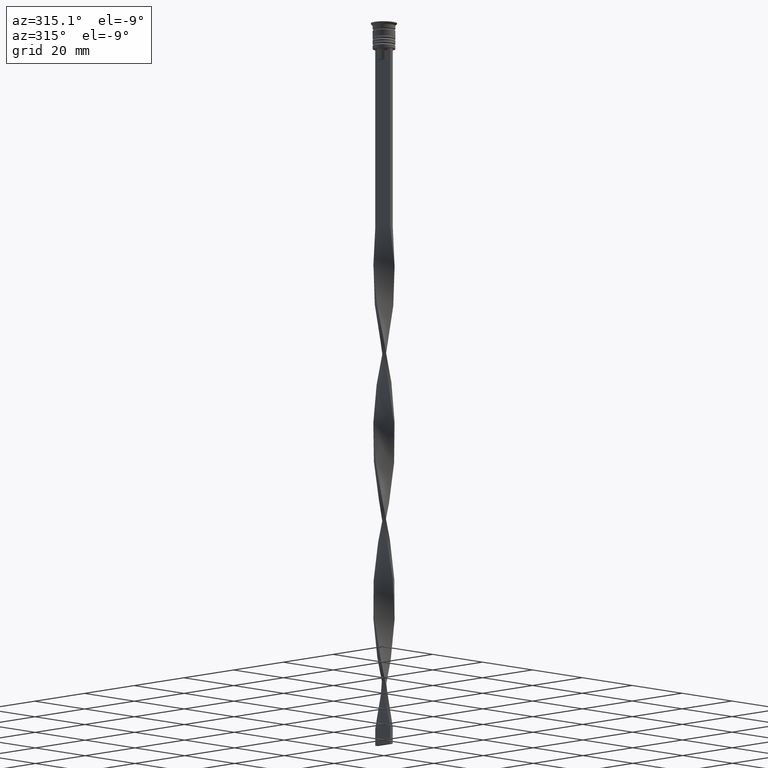
[diagram: clean part render]
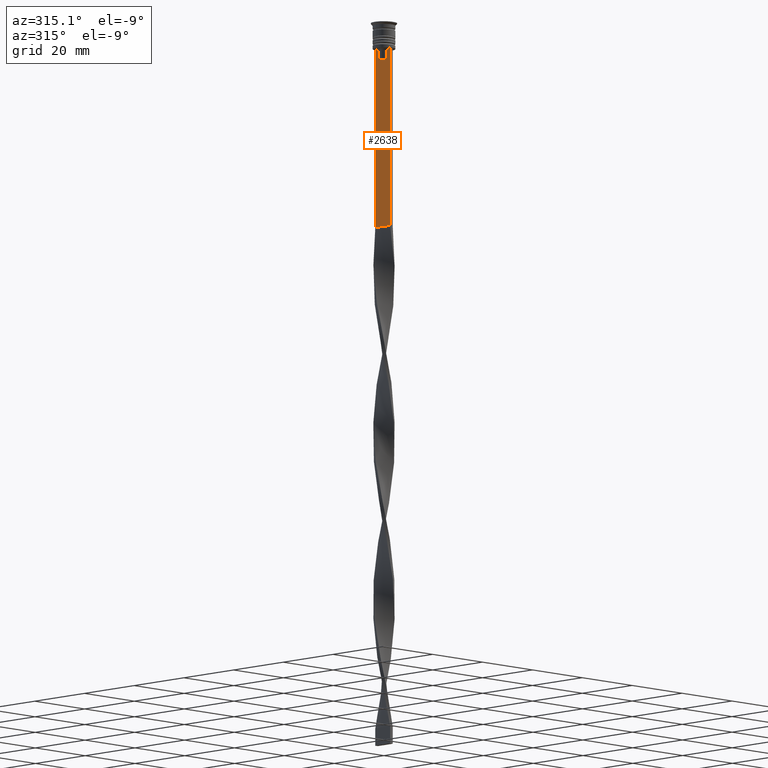
[diagram: same view with one face highlighted and labeled with its STEP entity id]
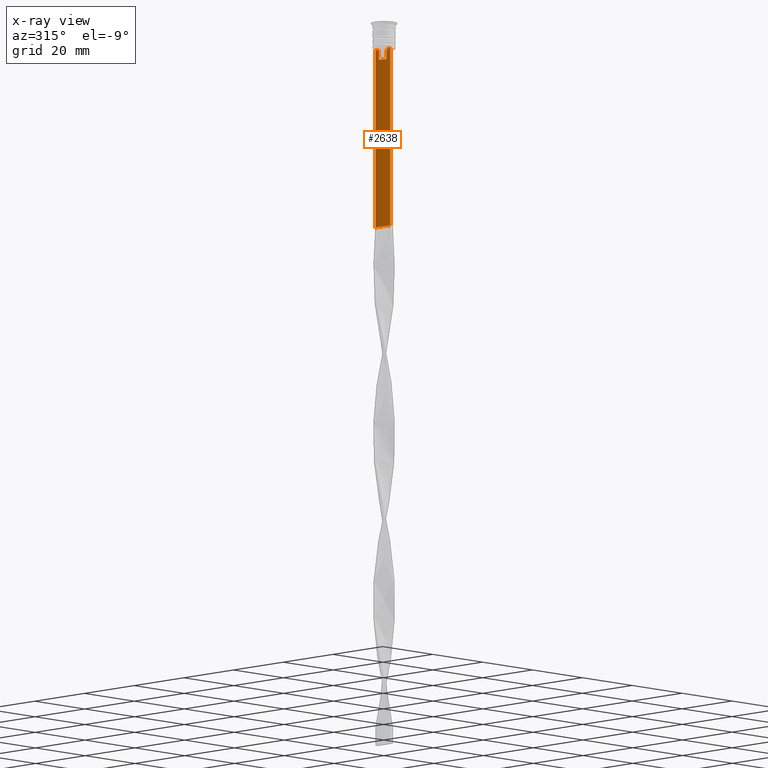
[diagram: x-ray of the same camera — body ghosted, the highlighted face saturated]
A machine part, auxiliary view. The second image highlights one B-rep face of the part: STEP entity #2638.
The next image is the same camera in x-ray: the body ghosted, the highlighted face saturated — about 0% of this face is hidden behind the body in this view.
In plain terms, the highlighted planar face has unit normal (-1, 0, 0).
Its self-contained STEP definition (entity closure, byte-faithful):
#49 = DIRECTION ( 'NONE',  ( 0.000000000000000000, -1.000000000000000000, 0.000000000000000000 ) ) ;
#96 = VECTOR ( 'NONE', #1942, 1000.000000000000000 ) ;
#120 = EDGE_CURVE ( 'NONE', #1264, #617, #160, .T. ) ;
#128 = ORIENTED_EDGE ( 'NONE', *, *, #1461, .F. ) ;
#160 = LINE ( 'NONE', #2074, #2024 ) ;
#208 = LINE ( 'NONE', #3016, #96 ) ;
#267 = DIRECTION ( 'NONE',  ( 0.000000000000000000, 1.000000000000000000, 0.000000000000000000 ) ) ;
#290 = CARTESIAN_POINT ( 'NONE',  ( -0.5000000000000001110, 1.572418519351642230, -8.000000000000000000 ) ) ;
#322 = AXIS2_PLACEMENT_3D ( 'NONE', #1059, #1363, #1625 ) ;
#325 = LINE ( 'NONE', #2576, #1266 ) ;
#331 = VECTOR ( 'NONE', #2426, 1000.000000000000000 ) ;
#349 = ORIENTED_EDGE ( 'NONE', *, *, #120, .F. ) ;
#360 = ORIENTED_EDGE ( 'NONE', *, *, #1348, .T. ) ;
#480 = PLANE ( 'NONE',  #322 ) ;
#537 = B_SPLINE_CURVE_WITH_KNOTS ( 'NONE', 3,
 ( #3644, #2821, #3350, #290 ),
 .UNSPECIFIED., .F., .F.,
 ( 4, 4 ),
 ( 0.003696428037903516997, 0.004416830248125220952 ),
 .UNSPECIFIED. ) ;
#617 = VERTEX_POINT ( 'NONE', #2079 ) ;
#641 = VERTEX_POINT ( 'NONE', #1545 ) ;
#739 = VECTOR ( 'NONE', #1414, 1000.000000000000000 ) ;
#775 = LINE ( 'NONE', #3305, #1919 ) ;
#826 = EDGE_CURVE ( 'NONE', #2457, #1141, #1372, .T. ) ;
#860 = CARTESIAN_POINT ( 'NONE',  ( -0.5000000000000001110, -2.091052366632653481, -7.500000000000000000 ) ) ;
#928 = CARTESIAN_POINT ( 'NONE',  ( -0.5000000000000001110, 2.091052366632653481, -7.500000000000000000 ) ) ;
#1059 = CARTESIAN_POINT ( 'NONE',  ( -0.5000000000000001110, -3.000000000000000000, -1.417237469701779329 ) ) ;
#1139 = EDGE_LOOP ( 'NONE', ( #1831, #2073, #360, #2185, #128, #2389, #2422, #2635, #2833, #349 ) ) ;
#1141 = VERTEX_POINT ( 'NONE', #1142 ) ;
#1142 = CARTESIAN_POINT ( 'NONE',  ( -0.5000000000000001110, 3.000000000000000000, -58.50000000000000000 ) ) ;
#1181 = EDGE_CURVE ( 'NONE', #3354, #1912, #325, .T. ) ;
#1264 = VERTEX_POINT ( 'NONE', #3199 ) ;
#1266 = VECTOR ( 'NONE', #49, 1000.000000000000000 ) ;
#1272 = VERTEX_POINT ( 'NONE', #928 ) ;
#1291 = CARTESIAN_POINT ( 'NONE',  ( -0.5000000000000001110, -1.572418519351642230, 0.000000000000000000 ) ) ;
#1348 = EDGE_CURVE ( 'NONE', #1877, #1141, #2935, .T. ) ;
#1363 = DIRECTION ( 'NONE',  ( -1.000000000000000000, 0.000000000000000000, 0.000000000000000000 ) ) ;
#1372 = LINE ( 'NONE', #1913, #3503 ) ;
#1414 = DIRECTION ( 'NONE',  ( 0.000000000000000000, -1.000000000000000000, 0.000000000000000000 ) ) ;
#1461 = EDGE_CURVE ( 'NONE', #1912, #2457, #775, .T. ) ;
#1545 = CARTESIAN_POINT ( 'NONE',  ( -0.5000000000000001110, -1.572418519351642230, -8.000000000000000000 ) ) ;
#1585 = VERTEX_POINT ( 'NONE', #2631 ) ;
#1623 = CARTESIAN_POINT ( 'NONE',  ( -0.5000000000000001110, 3.000000000000000000, -7.500000000000000000 ) ) ;
#1625 = DIRECTION ( 'NONE',  ( 0.000000000000000000, 0.000000000000000000, 1.000000000000000000 ) ) ;
#1709 = CARTESIAN_POINT ( 'NONE',  ( -0.5000000000000001110, -1.746240429054158660, -7.834351036433149673 ) ) ;
#1801 = VECTOR ( 'NONE', #2671, 1000.000000000000000 ) ;
#1831 = ORIENTED_EDGE ( 'NONE', *, *, #2051, .F. ) ;
#1877 = VERTEX_POINT ( 'NONE', #1623 ) ;
#1912 = VERTEX_POINT ( 'NONE', #3591 ) ;
#1913 = CARTESIAN_POINT ( 'NONE',  ( -0.5000000000000001110, -3.000000000000000000, -58.50000000000000000 ) ) ;
#1919 = VECTOR ( 'NONE', #3277, 1000.000000000000000 ) ;
#1942 = DIRECTION ( 'NONE',  ( 0.000000000000000000, -1.000000000000000000, 0.000000000000000000 ) ) ;
#2024 = VECTOR ( 'NONE', #3197, 1000.000000000000000 ) ;
#2051 = EDGE_CURVE ( 'NONE', #1272, #1264, #537, .T. ) ;
#2073 = ORIENTED_EDGE ( 'NONE', *, *, #3600, .F. ) ;
#2074 = CARTESIAN_POINT ( 'NONE',  ( -0.5000000000000001110, 1.572418519351642230, 0.000000000000000000 ) ) ;
#2076 = EDGE_CURVE ( 'NONE', #617, #1585, #3099, .T. ) ;
#2079 = CARTESIAN_POINT ( 'NONE',  ( -0.5000000000000001110, 1.572418519351642230, -10.49999999999999822 ) ) ;
#2092 = LINE ( 'NONE', #1291, #331 ) ;
#2101 = EDGE_CURVE ( 'NONE', #641, #3354, #2709, .T. ) ;
#2164 = CARTESIAN_POINT ( 'NONE',  ( -0.5000000000000001110, -2.091052366632653481, -7.500000000000000000 ) ) ;
#2178 = FACE_OUTER_BOUND ( 'NONE', #1139, .T. ) ;
#2185 = ORIENTED_EDGE ( 'NONE', *, *, #826, .F. ) ;
#2389 = ORIENTED_EDGE ( 'NONE', *, *, #1181, .F. ) ;
#2422 = ORIENTED_EDGE ( 'NONE', *, *, #2101, .F. ) ;
#2426 = DIRECTION ( 'NONE',  ( -0.000000000000000000, -0.000000000000000000, 1.000000000000000000 ) ) ;
#2457 = VERTEX_POINT ( 'NONE', #2651 ) ;
#2525 = CARTESIAN_POINT ( 'NONE',  ( -0.5000000000000001110, 1.650000000000003464, -10.49999999999999822 ) ) ;
#2576 = CARTESIAN_POINT ( 'NONE',  ( -0.5000000000000001110, -3.000000000000000000, -7.500000000000000000 ) ) ;
#2631 = CARTESIAN_POINT ( 'NONE',  ( -0.5000000000000001110, -1.572418519351642230, -10.49999999999999822 ) ) ;
#2635 = ORIENTED_EDGE ( 'NONE', *, *, #3398, .F. ) ;
#2638 = ADVANCED_FACE ( 'NONE', ( #2178 ), #480, .T. ) ;
#2651 = CARTESIAN_POINT ( 'NONE',  ( -0.5000000000000001110, -3.000000000000000000, -58.50000000000000000 ) ) ;
#2671 = DIRECTION ( 'NONE',  ( 0.000000000000000000, 0.000000000000000000, -1.000000000000000000 ) ) ;
#2709 = B_SPLINE_CURVE_WITH_KNOTS ( 'NONE', 3,
 ( #3336, #1709, #3387, #860 ),
 .UNSPECIFIED., .F., .F.,
 ( 4, 4 ),
 ( 0.008356915209744724543, 0.009073319521387648162 ),
 .UNSPECIFIED. ) ;
#2821 = CARTESIAN_POINT ( 'NONE',  ( -0.5000000000000001110, 1.918907889994530658, -7.667424704779945976 ) ) ;
#2833 = ORIENTED_EDGE ( 'NONE', *, *, #2076, .F. ) ;
#2935 = LINE ( 'NONE', #3476, #1801 ) ;
#3016 = CARTESIAN_POINT ( 'NONE',  ( -0.5000000000000001110, -3.000000000000000000, -7.500000000000000000 ) ) ;
#3099 = LINE ( 'NONE', #2525, #739 ) ;
#3197 = DIRECTION ( 'NONE',  ( 0.000000000000000000, 0.000000000000000000, -1.000000000000000000 ) ) ;
#3199 = CARTESIAN_POINT ( 'NONE',  ( -0.5000000000000001110, 1.572418519351642230, -8.000000000000000000 ) ) ;
#3277 = DIRECTION ( 'NONE',  ( 0.000000000000000000, 0.000000000000000000, -1.000000000000000000 ) ) ;
#3305 = CARTESIAN_POINT ( 'NONE',  ( -0.5000000000000001110, -3.000000000000000000, -1.417237469701779329 ) ) ;
#3336 = CARTESIAN_POINT ( 'NONE',  ( -0.5000000000000001110, -1.572418519351642230, -8.000000000000000000 ) ) ;
#3350 = CARTESIAN_POINT ( 'NONE',  ( -0.5000000000000001110, 1.746261636039132092, -7.834330826581080487 ) ) ;
#3354 = VERTEX_POINT ( 'NONE', #2164 ) ;
#3387 = CARTESIAN_POINT ( 'NONE',  ( -0.5000000000000001110, -1.918909712772151721, -7.667422931978337353 ) ) ;
#3398 = EDGE_CURVE ( 'NONE', #1585, #641, #2092, .T. ) ;
#3476 = CARTESIAN_POINT ( 'NONE',  ( -0.5000000000000001110, 3.000000000000000000, -1.417237469701779329 ) ) ;
#3503 = VECTOR ( 'NONE', #267, 1000.000000000000000 ) ;
#3591 = CARTESIAN_POINT ( 'NONE',  ( -0.5000000000000001110, -3.000000000000000000, -7.500000000000000000 ) ) ;
#3600 = EDGE_CURVE ( 'NONE', #1877, #1272, #208, .T. ) ;
#3644 = CARTESIAN_POINT ( 'NONE',  ( -0.5000000000000001110, 2.091052366632653481, -7.500000000000000000 ) ) ;